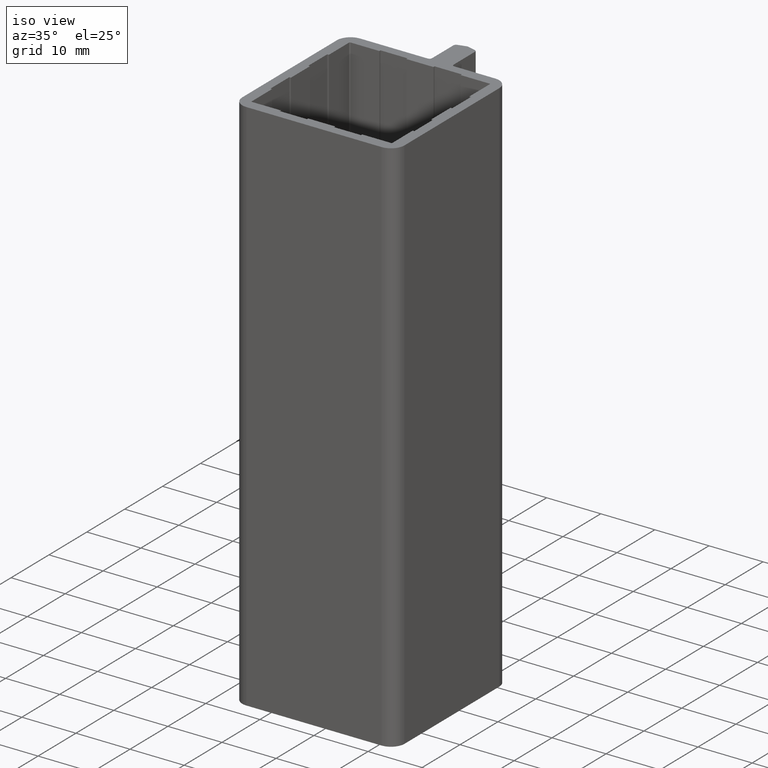
[diagram: clean part render]
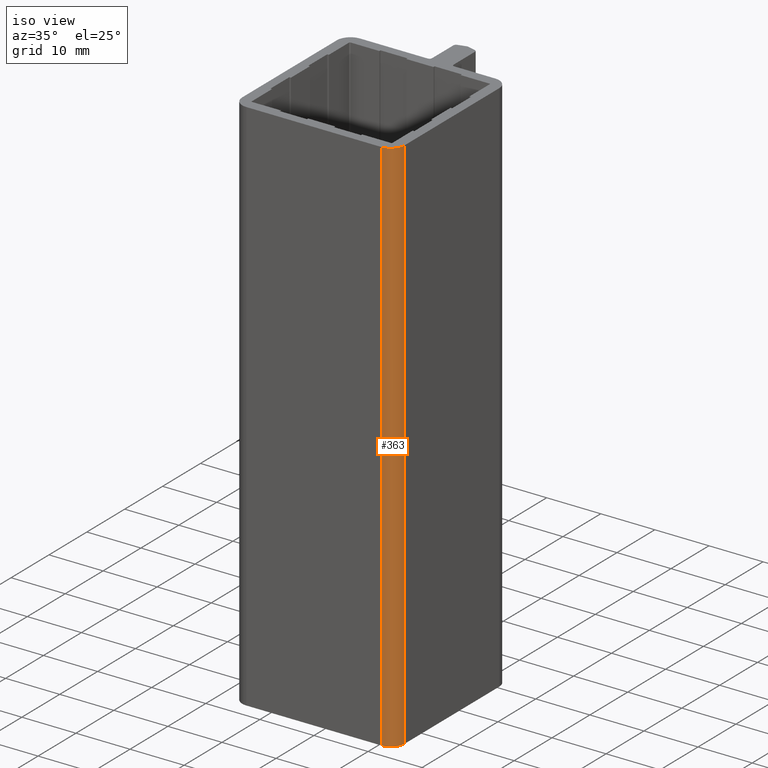
[diagram: same view with one face highlighted and labeled with its STEP entity id]
A machine part, iso view. The second image highlights one B-rep face of the part: STEP entity #363.
In plain terms, the highlighted cylindrical surface (edge-blend (fillet) strip) has radius 2.5 mm, axis along (0, 0, 1).
Its self-contained STEP definition (entity closure, byte-faithful):
#306=CARTESIAN_POINT('',(12.499999999987551,0.0,0.0));
#307=VERTEX_POINT('',#306);
#314=CARTESIAN_POINT('',(12.499999999987551,0.0,100.0));
#315=VERTEX_POINT('',#314);
#316=CARTESIAN_POINT('',(12.499999999987551,0.0,100.0));
#317=DIRECTION('',(0.0,0.0,-1.0));
#318=VECTOR('',#317,100.0);
#319=LINE('',#316,#318);
#320=EDGE_CURVE('',#315,#307,#319,.T.);
#331=CARTESIAN_POINT('',(12.499999999987551,2.499999999997499,100.0));
#332=DIRECTION('',(0.0,0.0,1.0));
#333=DIRECTION('',(5.053215E-016,-1.0,0.0));
#334=AXIS2_PLACEMENT_3D('',#331,#332,#333);
#335=CYLINDRICAL_SURFACE('',#334,2.499999999997500);
#336=ORIENTED_EDGE('',*,*,#320,.T.);
#337=CARTESIAN_POINT('',(14.999999999984766,2.499999999997499,0.0));
#338=VERTEX_POINT('',#337);
#339=CARTESIAN_POINT('',(12.499999999987551,2.499999999997499,0.0));
#340=DIRECTION('',(0.0,0.0,1.0));
#341=DIRECTION('',(1.0,0.0,0.0));
#342=AXIS2_PLACEMENT_3D('',#339,#340,#341);
#343=CIRCLE('',#342,2.499999999997500);
#344=EDGE_CURVE('',#307,#338,#343,.T.);
#345=ORIENTED_EDGE('',*,*,#344,.T.);
#346=CARTESIAN_POINT('',(14.999999999984766,2.499999999997499,100.0));
#347=VERTEX_POINT('',#346);
#348=CARTESIAN_POINT('',(14.999999999984766,2.499999999997499,100.0));
#349=DIRECTION('',(0.0,0.0,-1.0));
#350=VECTOR('',#349,100.0);
#351=LINE('',#348,#350);
#352=EDGE_CURVE('',#347,#338,#351,.T.);
#353=ORIENTED_EDGE('',*,*,#352,.F.);
#354=CARTESIAN_POINT('',(12.499999999987551,2.499999999997499,100.0));
#355=DIRECTION('',(0.0,0.0,1.0));
#356=DIRECTION('',(1.0,0.0,0.0));
#357=AXIS2_PLACEMENT_3D('',#354,#355,#356);
#358=CIRCLE('',#357,2.499999999997500);
#359=EDGE_CURVE('',#315,#347,#358,.T.);
#360=ORIENTED_EDGE('',*,*,#359,.F.);
#361=EDGE_LOOP('',(#336,#345,#353,#360));
#362=FACE_OUTER_BOUND('',#361,.T.);
#363=ADVANCED_FACE('',(#362),#335,.T.);